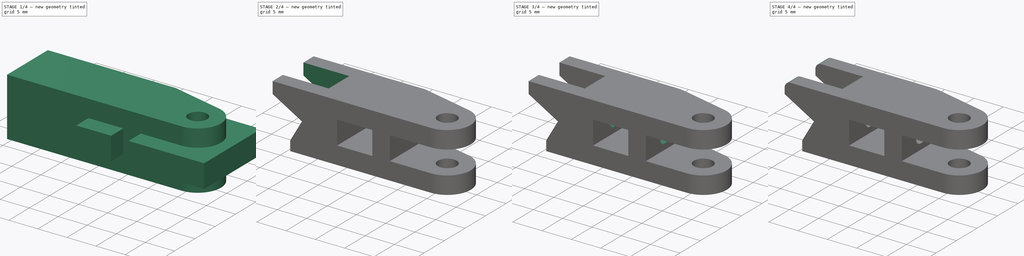
[diagram: build sequence overview — one tinted view per stage of 4, left to right]
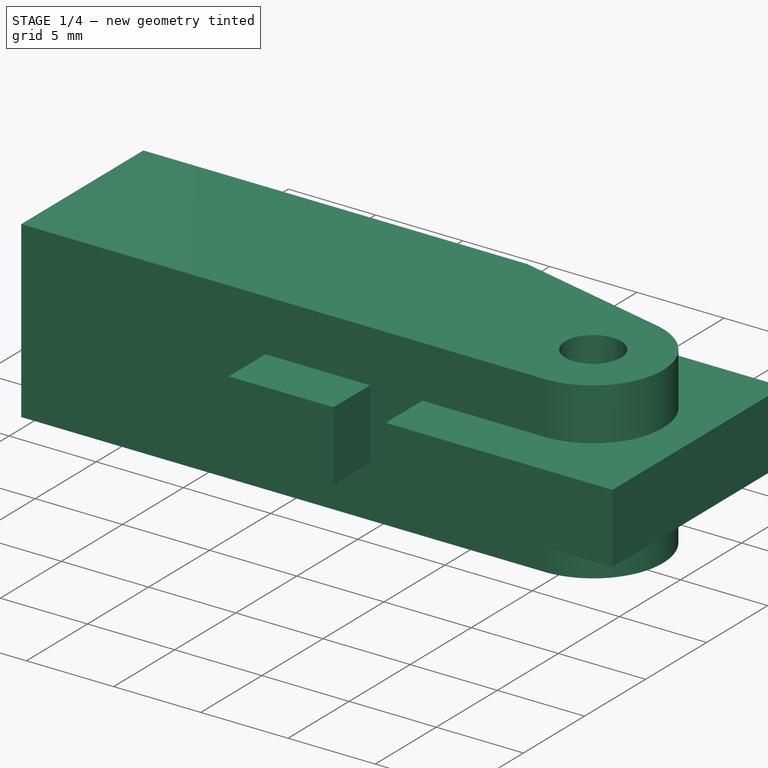
[diagram: stage 1 of 4 — iso view after this stage's code; geometry added in this stage tinted green]
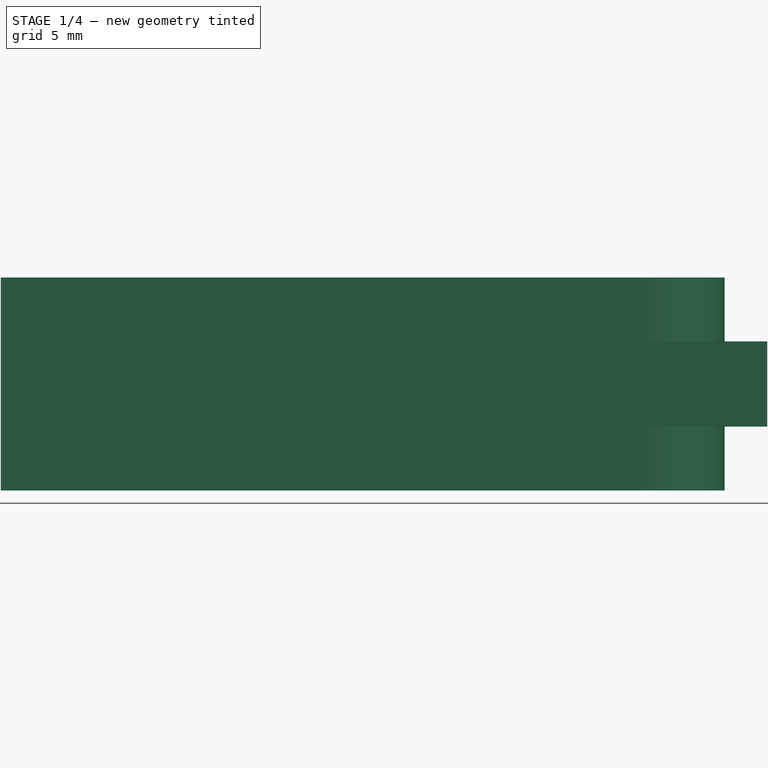
[diagram: stage 1 of 4 — front view after this stage's code; geometry added in this stage tinted green]
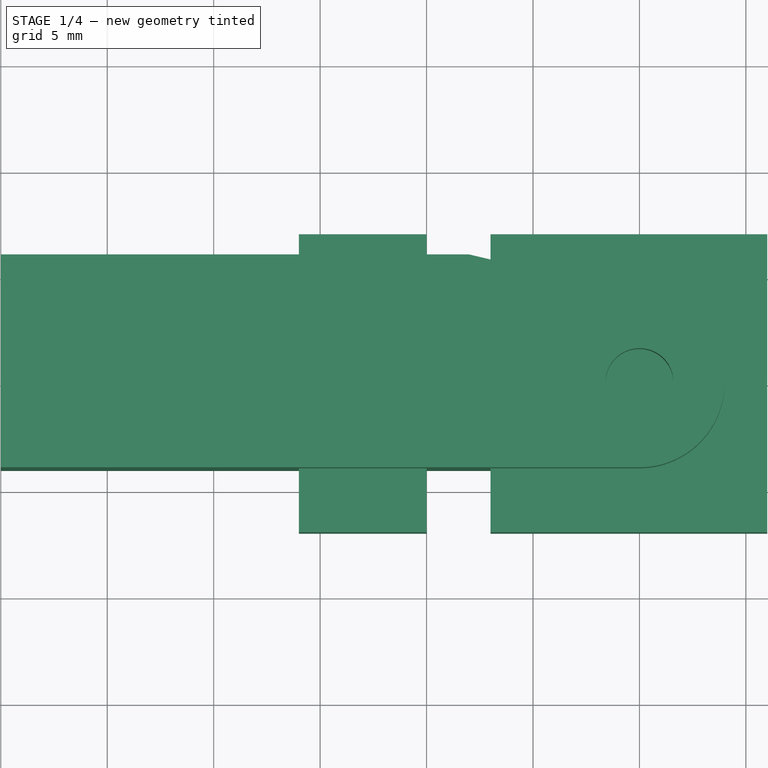
[diagram: stage 1 of 4 — top view after this stage's code; geometry added in this stage tinted green]
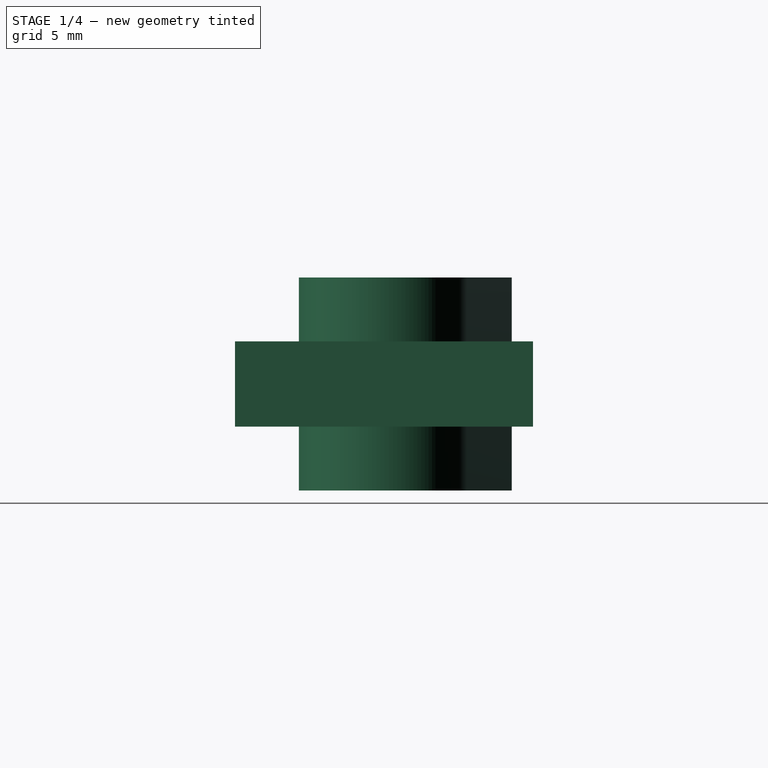
[diagram: stage 1 of 4 — right view after this stage's code; geometry added in this stage tinted green]
FCSTD DOCUMENT  (FreeCAD 0.15R4671 (Git))
Label: ThumbBase
License: All rights reserved
LicenseURL: http://en.wikipedia.org/wiki/All_rights_reserved
objects: Sketcher::SketchObject×6, PartDesign::Pocket×4, PartDesign::Fillet×3, PartDesign::Pad×2, Part::Cut×1
note: 22 computed .brp shape members not serialized (recipe doc carries the construction recipe); baked Part::Feature solids carry a one-line shape summary decoded from their .brp

FEATURE [Sketcher::SketchObject] Sketch
  sketch-geometry (6):
    g0: Circle CenterX=0 CenterY=0 CenterZ=0 NormalX=0 NormalY=0 NormalZ=1 Radius=1.6
    g1: ArcOfCircle CenterX=0 CenterY=0 CenterZ=0 NormalX=0 NormalY=0 NormalZ=1 Radius=4 StartAngle=4.71239 EndAngle=7.62199
    g2: LineSegment StartX=0 StartY=-4 StartZ=0 EndX=-30 EndY=-4 EndZ=0
    g3: LineSegment StartX=0.919656 StartY=3.89284 StartZ=0 EndX=-8 EndY=6 EndZ=0
    g4: LineSegment StartX=-8 StartY=6 StartZ=0 EndX=-30 EndY=6 EndZ=0
    g5: LineSegment StartX=-30 StartY=-4 StartZ=0 EndX=-30 EndY=6 EndZ=0
  constraints (17):
    c: Coincident(g0,g-1)
    c: Radius(g0) = 1.6
    c: Coincident(g1,g-1)
    c: Horizontal(g2)
    c: Coincident(g1,g2)
    c: PointOnObject(g1,g-2)
    c: Radius(g1) = 4
    c: Tangent(g3,g1)
    c: Coincident(g3,g1)
    c: Coincident(g4,g3)
    c: Horizontal(g4)
    c: Coincident(g5,g2)
    c: Coincident(g5,g4)
    c: Vertical(g5)
    c: DistanceX(g-1,g4) = -30
    c: DistanceY(g5) = 10
    c: DistanceX(g-1,g3) = -8
FEATURE [PartDesign::Pad] Pad
  Length = 10
  Length2 = 100
  Midplane = true
  Sketch = -> Sketch
  Type = 0
FEATURE [Sketcher::SketchObject] Sketch002
  sketch-geometry (8):
    g0: LineSegment StartX=-7 StartY=7 StartZ=0 EndX=6 EndY=7 EndZ=0
    g1: LineSegment StartX=6 StartY=7 StartZ=0 EndX=6 EndY=-7 EndZ=0
    g2: LineSegment StartX=6 StartY=-7 StartZ=0 EndX=-7 EndY=-7 EndZ=0
    g3: LineSegment StartX=-7 StartY=-7 StartZ=0 EndX=-7 EndY=7 EndZ=0
    g4: LineSegment StartX=-10 StartY=-7 StartZ=0 EndX=-16 EndY=-7 EndZ=0
    g5: LineSegment StartX=-16 StartY=-7 StartZ=0 EndX=-16 EndY=7 EndZ=0
    g6: LineSegment StartX=-16 StartY=7 StartZ=0 EndX=-10 EndY=7 EndZ=0
    g7: LineSegment StartX=-10 StartY=7 StartZ=0 EndX=-10 EndY=-7 EndZ=0
  constraints (24):
    c: Coincident(g0,g1)
    c: Coincident(g1,g2)
    c: Coincident(g2,g3)
    c: Coincident(g3,g0)
    c: Horizontal(g0)
    c: Horizontal(g2)
    c: Vertical(g1)
    c: DistanceY(g1) = -14
    c: Symmetric(g1,g0,g-1)
    c: Vertical(g3)
    c: DistanceX(g0) = 13
    c: DistanceX(g-1,g0) = 6
    c: Coincident(g4,g5)
    c: Coincident(g5,g6)
    c: Coincident(g6,g7)
    c: Coincident(g7,g4)
    c: Horizontal(g4)
    c: Horizontal(g6)
    c: Vertical(g5)
    c: Vertical(g7)
    c: Symmetric(g4,g6,g-1)
    c: Equal(g7,g1)
    c: DistanceX(g6,g0) = 3
    c: DistanceX(g6) = 6
FEATURE [PartDesign::Pad] Pad001
  Length = 4
  Length2 = 100
  Midplane = true
  Sketch = -> Sketch002
  Type = 0
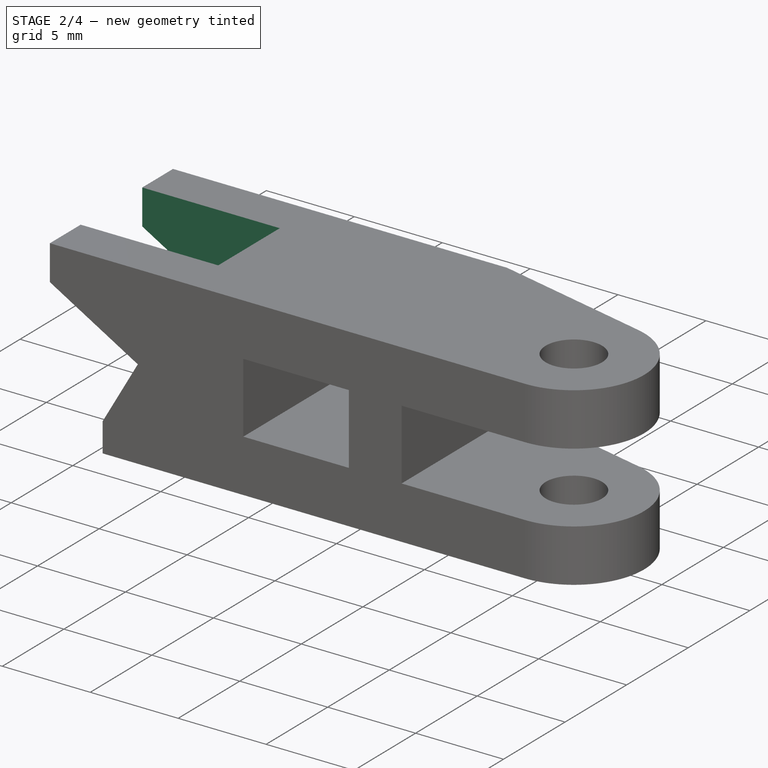
[diagram: stage 2 of 4 — iso view after this stage's code; geometry added in this stage tinted green]
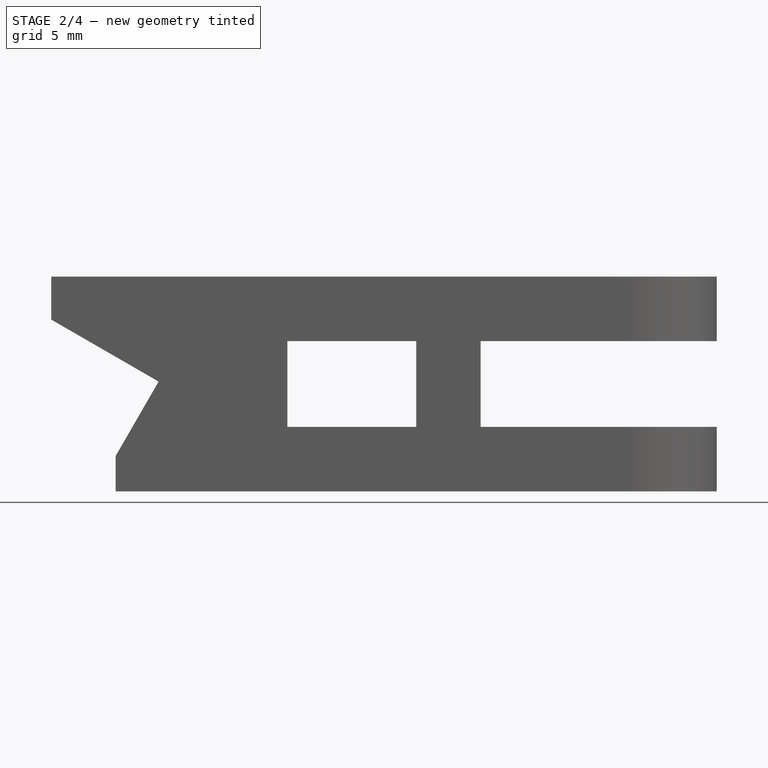
[diagram: stage 2 of 4 — front view after this stage's code; geometry added in this stage tinted green]
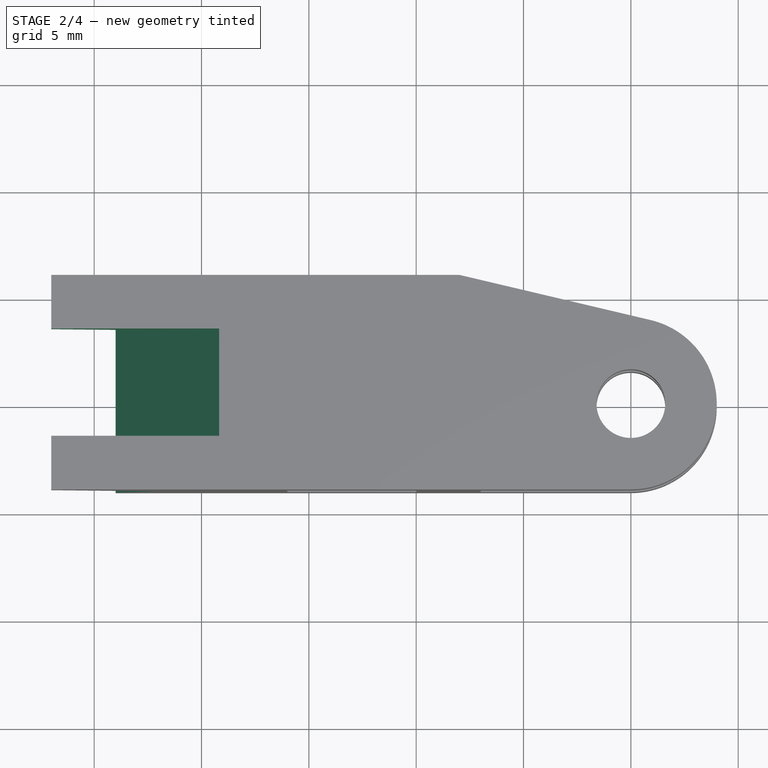
[diagram: stage 2 of 4 — top view after this stage's code; geometry added in this stage tinted green]
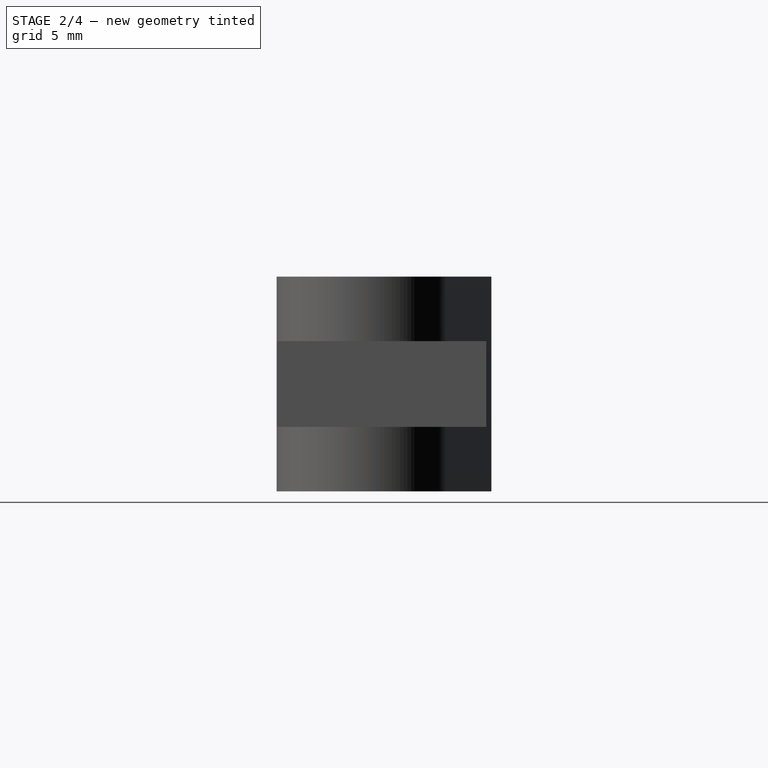
[diagram: stage 2 of 4 — right view after this stage's code; geometry added in this stage tinted green]
FEATURE [Sketcher::SketchObject] Sketch001
  ExternalGeometry = -> [Pad]
  Placement = pos=(0,6,0) rot=(0,0.707107,0.707107;3.14159rad)
  Support = -> Pad [Face3]
  sketch-geometry (7):
    g0: LineSegment StartX=22 StartY=0.113249 StartZ=0 EndX=24 EndY=-3.35085 EndZ=0
    g1: LineSegment StartX=30 StartY=5 StartZ=0 EndX=27 EndY=5 EndZ=0
    g2: LineSegment StartX=24 StartY=-3.35085 StartZ=0 EndX=24 EndY=-5 EndZ=0
    g3: LineSegment StartX=24 StartY=-5 StartZ=0 EndX=30 EndY=-5 EndZ=0
    g4: LineSegment StartX=30 StartY=-5 StartZ=0 EndX=30 EndY=5 EndZ=0
    g5: LineSegment StartX=27 StartY=5 StartZ=0 EndX=27 EndY=3 EndZ=0
    g6: LineSegment StartX=22 StartY=0.113249 StartZ=0 EndX=27 EndY=3 EndZ=0
  constraints (19):
    c: Coincident(g2,g0)
    c: Vertical(g2)
    c: PointOnObject(g2,g-4)
    c: Coincident(g3,g2)
    c: Coincident(g3,g-4)
    c: Coincident(g4,g3)
    c: Coincident(g4,g1)
    c: Horizontal(g1)
    c: Coincident(g1,g-5)
    c: Distance(g0) = 4
    c: DistanceX(g1,g1) = 3
    c: Coincident(g5,g1)
    c: Vertical(g5)
    c: Coincident(g6,g0)
    c: Coincident(g6,g5)
    c: Perpendicular(g0,g6)
    c: Angle(g5,g6) = 2.0944
    c: DistanceY(g5,g1) = 2
    c: DistanceX(g2,g3) = 6
FEATURE [PartDesign::Pocket] Pocket
  Length = 5
  Sketch = -> Sketch001
  Type = 1
FEATURE [Part::Cut] Cut
  Base = -> Pocket
  Tool = -> Pad001
FEATURE [Sketcher::SketchObject] Sketch003
  ExternalGeometry = -> [Cut]
  Placement = pos=(-5.45096,0,-9.44134) rot=(0.965926,0,-0.258819;3.14159rad)
  Support = -> Cut [Face14]
  sketch-geometry (5):
    g0: LineSegment [constr] StartX=-19.1092 StartY=-1 StartZ=0 EndX=-26.1092 EndY=-1 EndZ=0
    g1: LineSegment StartX=-19.1092 StartY=1.5 StartZ=0 EndX=-26.1092 EndY=1.5 EndZ=0
    g2: LineSegment StartX=-19.1092 StartY=-3.5 StartZ=0 EndX=-26.1092 EndY=-3.5 EndZ=0
    g3: LineSegment StartX=-26.1092 StartY=1.5 StartZ=0 EndX=-26.1092 EndY=-3.5 EndZ=0
    g4: LineSegment StartX=-19.1092 StartY=1.5 StartZ=0 EndX=-19.1092 EndY=-3.5 EndZ=0
  constraints (14):
    c: PointOnObject(g0,g-3)
    c: Symmetric(g-3,g-3,g0)
    c: PointOnObject(g1,g-3)
    c: PointOnObject(g2,g-3)
    c: Horizontal(g2)
    c: Symmetric(g1,g2,g0)
    c: Coincident(g3,g1)
    c: Coincident(g3,g2)
    c: Horizontal(g1)
    c: PointOnObject(g0,g3)
    c: DistanceY(g3) = -5
    c: DistanceX(g2) = -7
    c: Coincident(g4,g1)
    c: Coincident(g4,g2)
FEATURE [PartDesign::Pocket] Pocket001
  Length = 5
  Sketch = -> Sketch003
  Type = 1
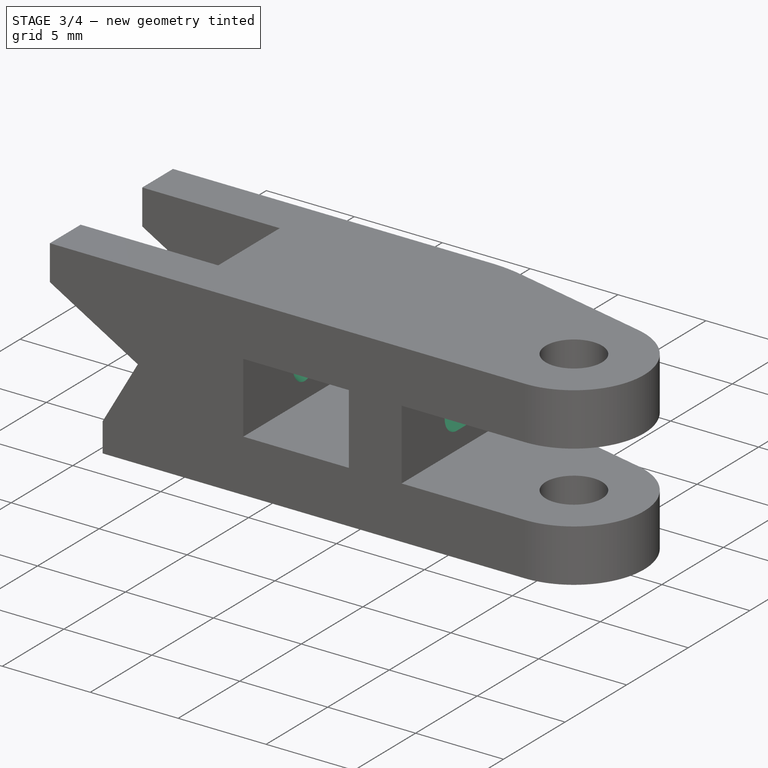
[diagram: stage 3 of 4 — iso view after this stage's code; geometry added in this stage tinted green]
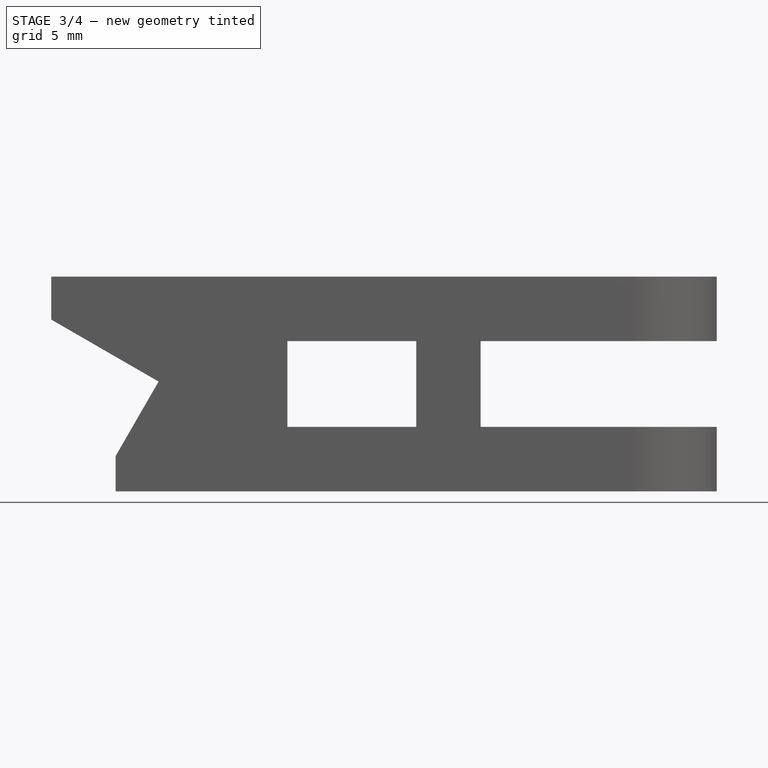
[diagram: stage 3 of 4 — front view after this stage's code; geometry added in this stage tinted green]
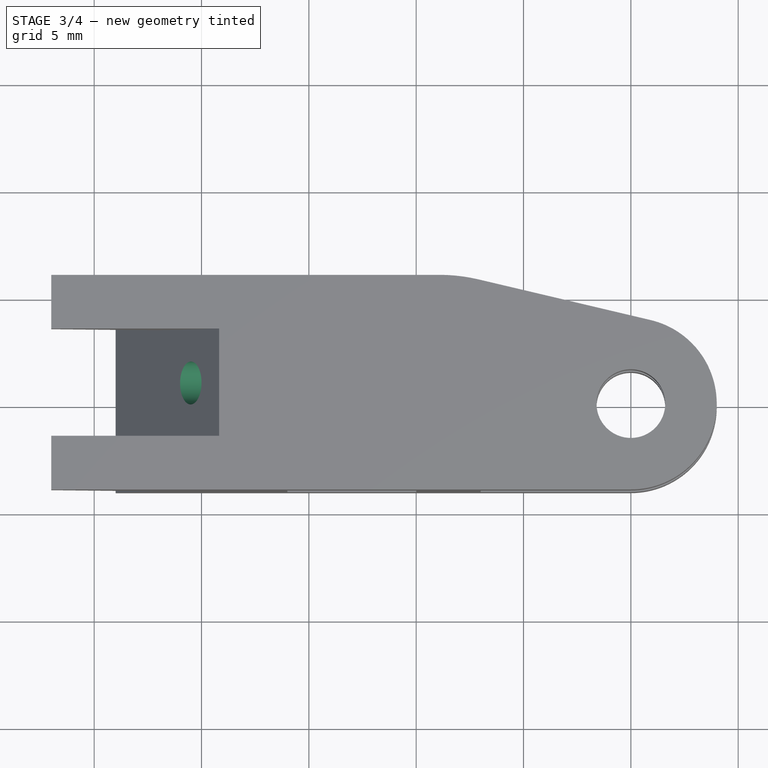
[diagram: stage 3 of 4 — top view after this stage's code; geometry added in this stage tinted green]
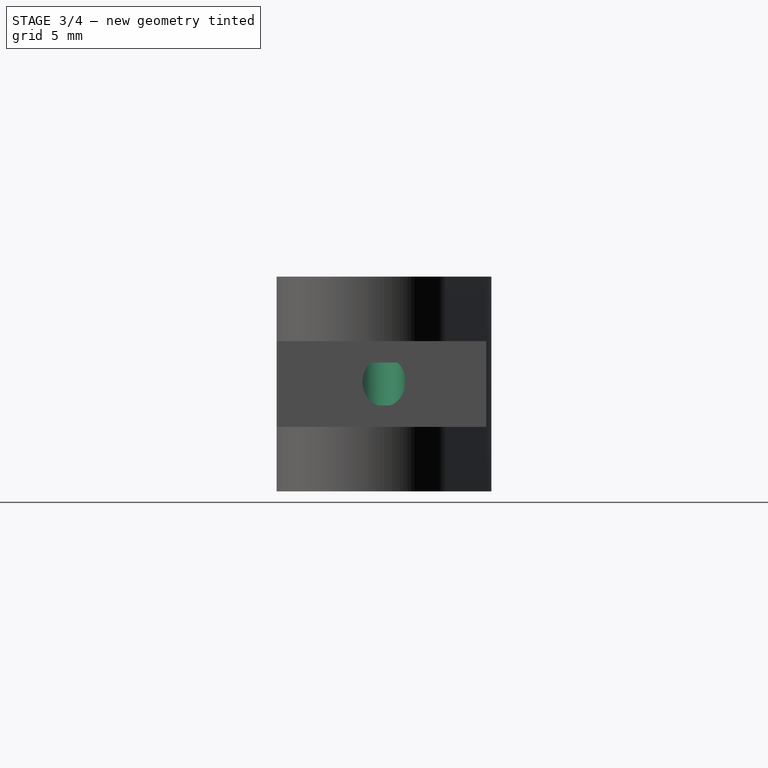
[diagram: stage 3 of 4 — right view after this stage's code; geometry added in this stage tinted green]
FEATURE [Sketcher::SketchObject] Sketch004
  ExternalGeometry = -> [Pocket001]
  Placement = pos=(-16.549,0,9.55459) rot=(0.447214,-0.447214,-0.774597;1.82348rad)
  Support = -> Pocket001 [Face23]
  sketch-geometry (2):
    g0: Circle CenterX=-1 CenterY=-7.90192 CenterZ=0 NormalX=0 NormalY=0 NormalZ=1 Radius=1
    g1: LineSegment [constr] StartX=-1 StartY=-10.9019 StartZ=0 EndX=-1 EndY=-7.90192 EndZ=0
  constraints (6):
    c: PointOnObject(g1,g-3)
    c: Coincident(g1,g0)
    c: Vertical(g1)
    c: Symmetric(g-3,g-3,g1)
    c: Radius(g0) = 1
    c: DistanceY(g1) = 3
FEATURE [PartDesign::Pocket] Pocket002
  Length = 6
  Sketch = -> Sketch004
  Type = 0
FEATURE [Sketcher::SketchObject] Sketch005
  Placement = pos=(-7,0,0) rot=(0.57735,0.57735,0.57735;2.0944rad)
  Support = -> Pocket002 [Face12]
  sketch-geometry (6):
    g0: LineSegment StartX=0.5 StartY=1 StartZ=0 EndX=2.5 EndY=1 EndZ=0
    g1: LineSegment StartX=0.5 StartY=-1 StartZ=0 EndX=2.5 EndY=-1 EndZ=0
    g2: LineSegment [constr] StartX=2.5 StartY=1 StartZ=0 EndX=2.5 EndY=-1 EndZ=0
    g3: LineSegment [constr] StartX=0.5 StartY=1 StartZ=0 EndX=0.5 EndY=-1 EndZ=0
    g4: ArcOfCircle CenterX=2.5 CenterY=0 CenterZ=0 NormalX=0 NormalY=0 NormalZ=1 Radius=1 StartAngle=4.71239 EndAngle=7.85398
    g5: ArcOfCircle CenterX=0.5 CenterY=0 CenterZ=0 NormalX=0 NormalY=0 NormalZ=1 Radius=1 StartAngle=1.5708 EndAngle=4.71239
  constraints (19):
    c: Horizontal(g0)
    c: Horizontal(g1)
    c: Vertical(g2)
    c: PointOnObject(g4,g2)
    c: PointOnObject(g4,g-1)
    c: Coincident(g4,g0)
    c: Coincident(g0,g2)
    c: Coincident(g4,g1)
    c: Coincident(g4,g2)
    c: Coincident(g3,g0)
    c: Coincident(g3,g1)
    c: PointOnObject(g5,g3)
    c: PointOnObject(g5,g-1)
    c: Coincident(g5,g0)
    c: Coincident(g5,g1)
    c: Vertical(g3)
    c: Radius(g4) = 1
    c: DistanceX(g-1,g4) = 2.5
    c: DistanceX(g5,g4) = 2
FEATURE [PartDesign::Pocket] Pocket003
  Length = 3
  Sketch = -> Sketch005
  Type = 0
FEATURE [PartDesign::Fillet] Fillet
  Base = -> Pocket003 [Edge10]
  Radius = 8
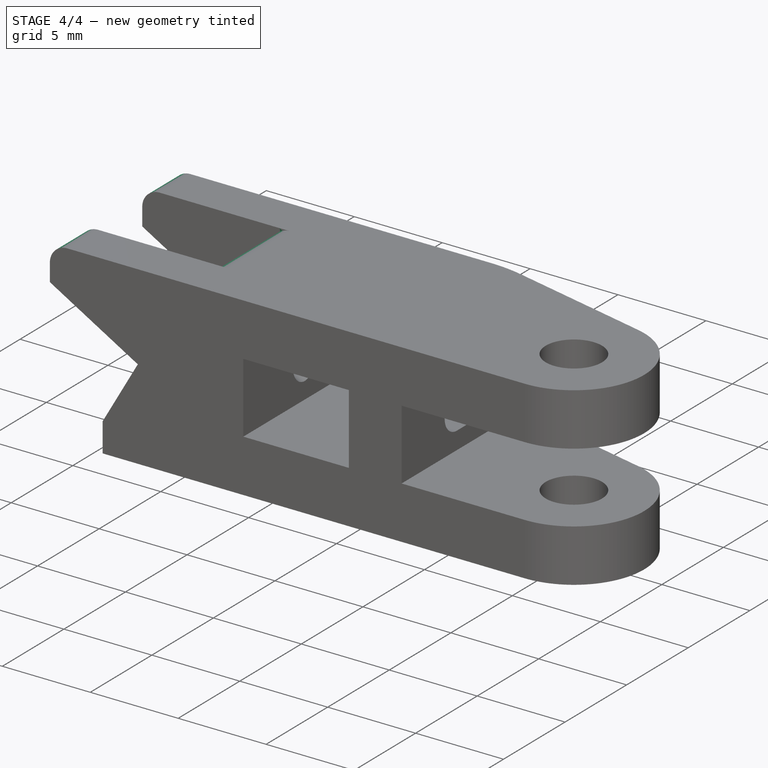
[diagram: stage 4 of 4 — iso view after this stage's code; geometry added in this stage tinted green]
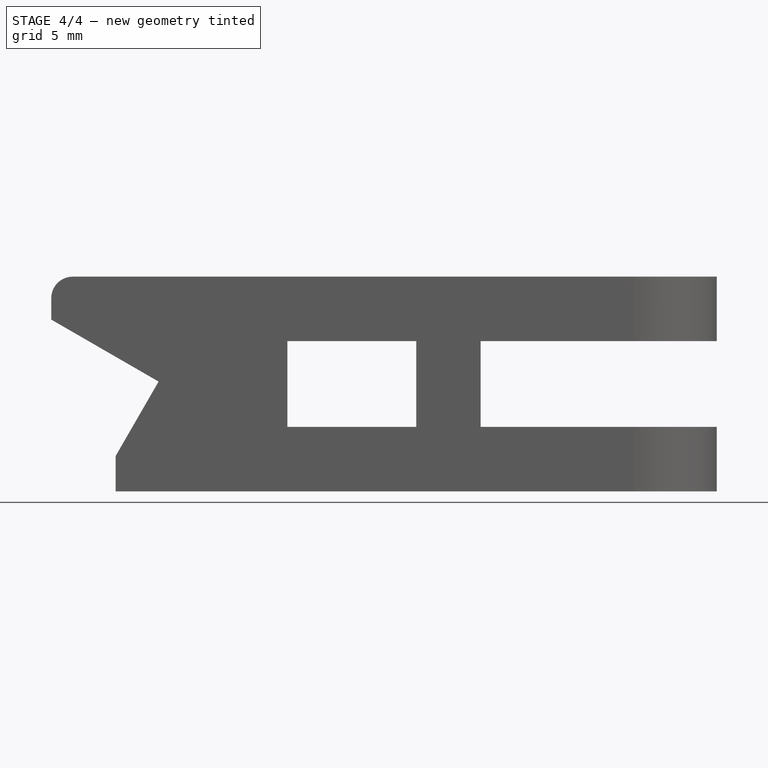
[diagram: stage 4 of 4 — front view after this stage's code; geometry added in this stage tinted green]
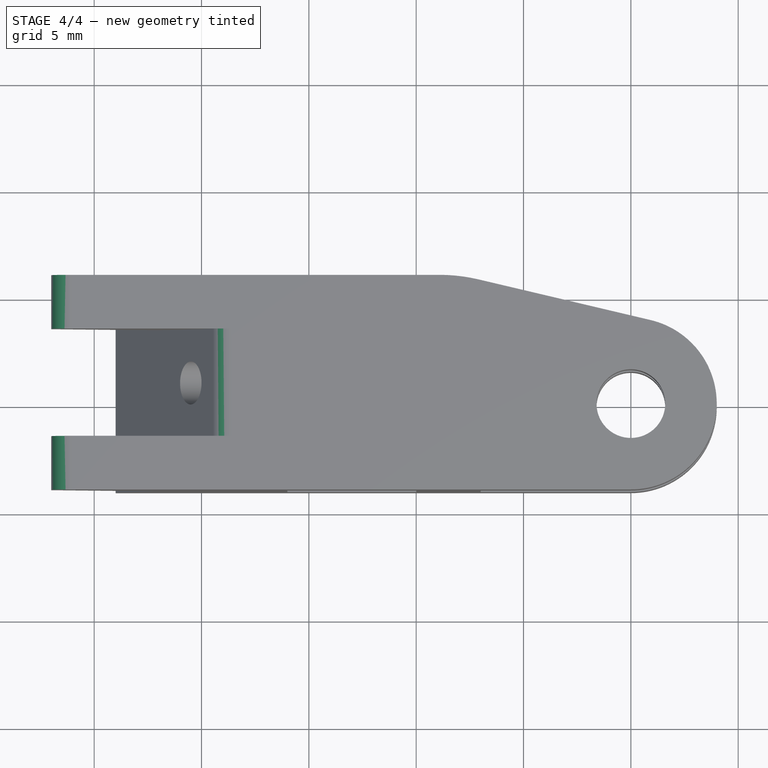
[diagram: stage 4 of 4 — top view after this stage's code; geometry added in this stage tinted green]
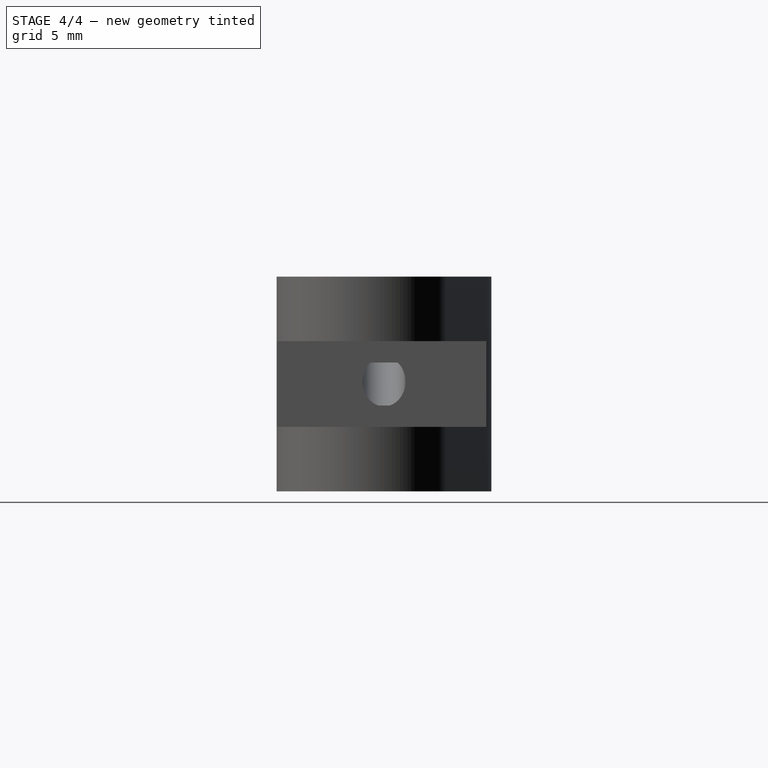
[diagram: stage 4 of 4 — right view after this stage's code; geometry added in this stage tinted green]
FEATURE [PartDesign::Fillet] Fillet001
  Base = -> Fillet [Edge45,Edge46]
  Radius = 1
FEATURE [PartDesign::Fillet] Fillet002
  Base = -> Fillet001 [Edge17]
  Radius = 1
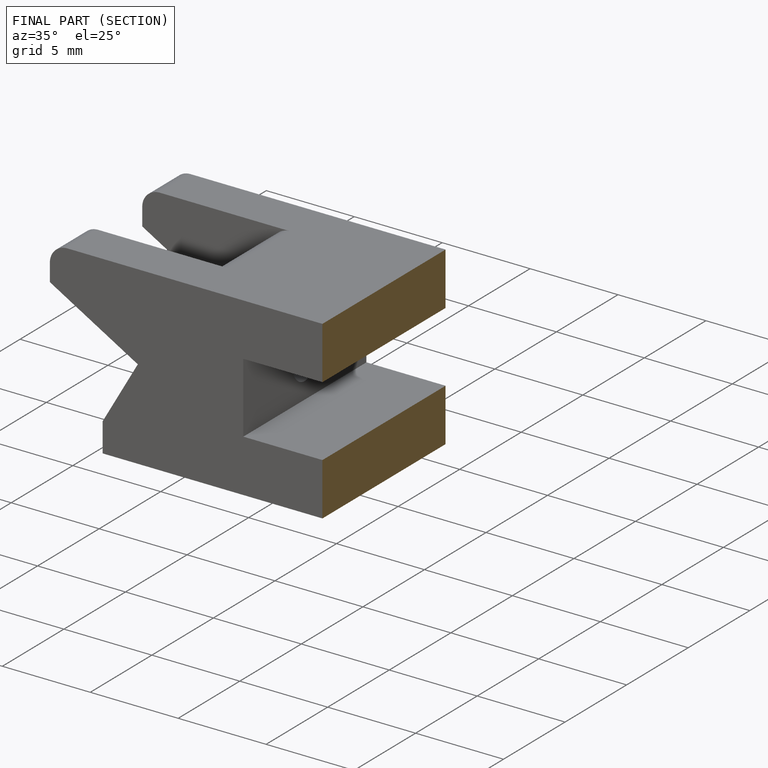
[diagram: finished part — half-section view (interior)]
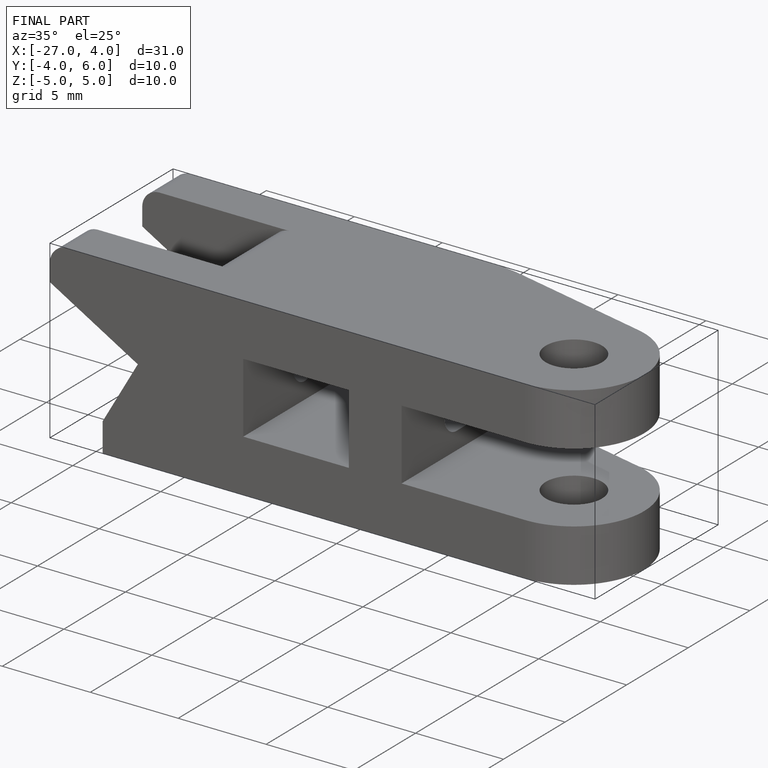
[diagram: finished part — iso view with bounding-box wireframe]
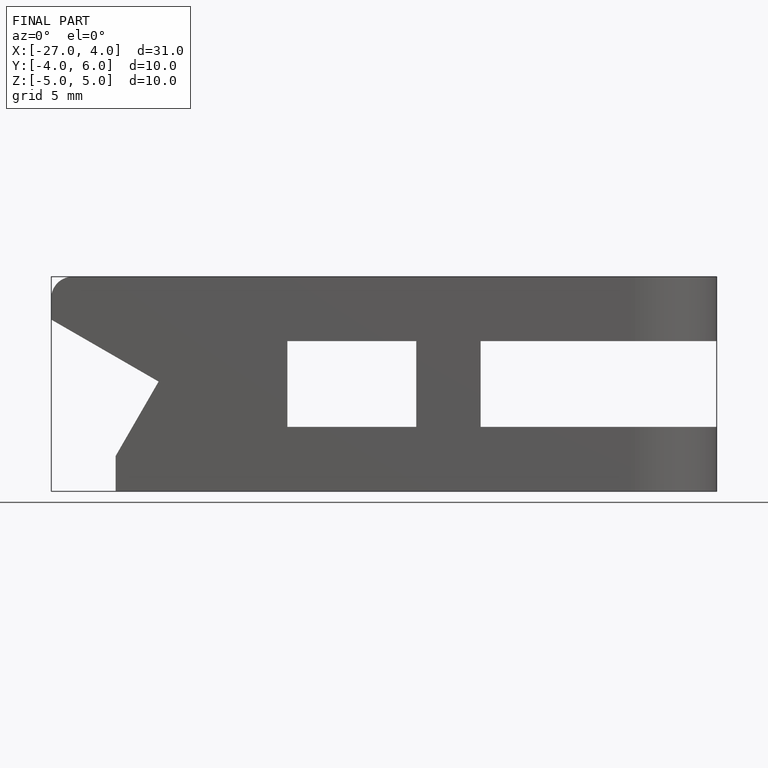
[diagram: finished part — front view with bounding-box wireframe]
